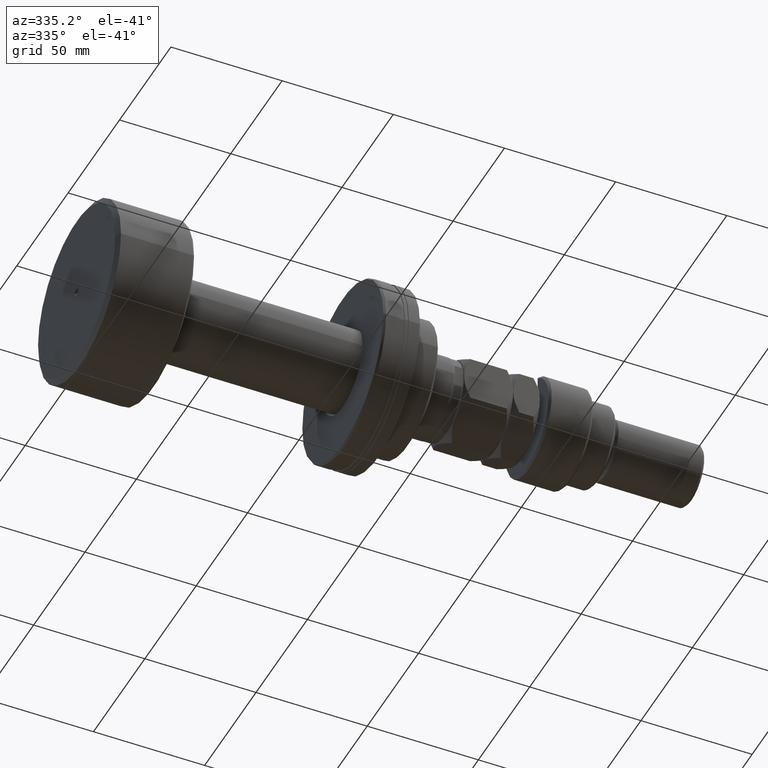
[diagram: clean part render]
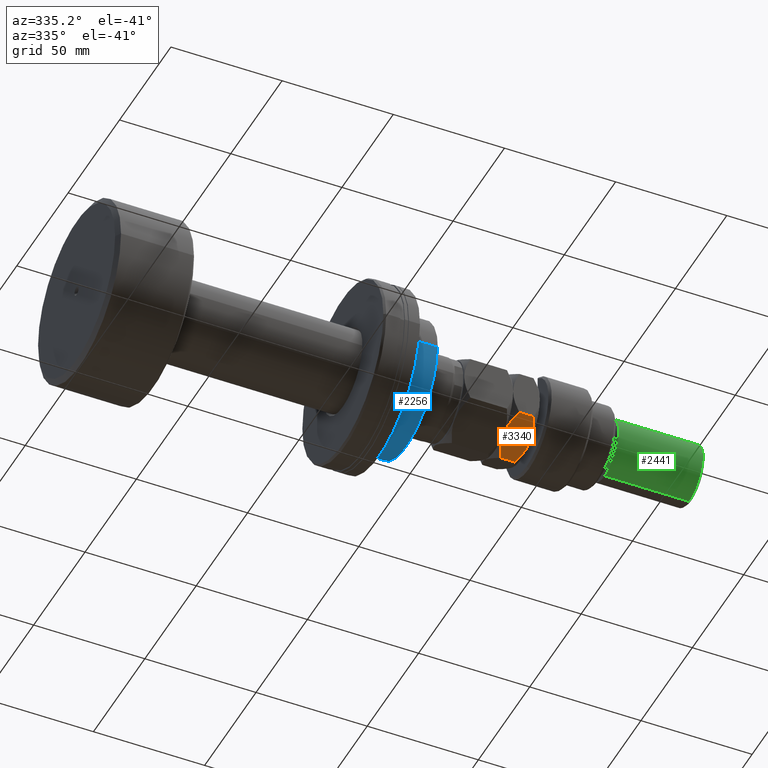
[diagram: same view with three faces highlighted in distinct colors, each labeled with its STEP entity id]
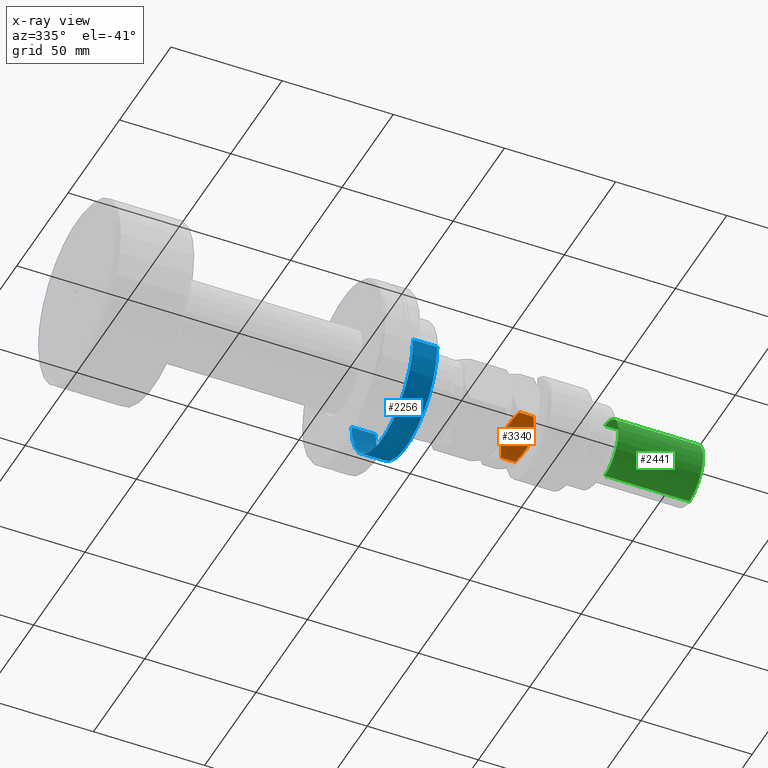
[diagram: x-ray of the same camera — body ghosted, the three highlighted faces saturated]
A machine part, auxiliary view with three faces highlighted in distinct colors.
The next image is the same camera in x-ray (body ghosted, the three faces saturated) — at least one of them is partly hidden behind the body in this view.
Their STEP definitions:

[orange] entity #3340 — the highlighted planar face has unit normal (-0, 0.5, 0.866).
#30 = CARTESIAN_POINT ( 'NONE',  ( 17.99999999999999645, 10.39230484541326227, 34.00000000000000000 ) ) ;
#107 = CARTESIAN_POINT ( 'NONE',  ( 18.00000000000000000, -1.821330908532695414, 22.08626935753087750 ) ) ;
#168 = CARTESIAN_POINT ( 'NONE',  ( 17.99999999999999289, 1.827245545920531233, 22.00000000000000000 ) ) ;
#263 = CARTESIAN_POINT ( 'NONE',  ( 17.99999999999999645, 4.485772026403929580, 33.46805093283005306 ) ) ;
#457 = CARTESIAN_POINT ( 'NONE',  ( 17.99999999999999645, -2.270651277618684460, 22.13729652813022142 ) ) ;
#521 = VERTEX_POINT ( 'NONE', #4537 ) ;
#539 = VECTOR ( 'NONE', #4757, 1000.000000000000000 ) ;
#562 = CARTESIAN_POINT ( 'NONE',  ( 18.00000000000000355, 9.586360653924579367, 24.38163759508217154 ) ) ;
#567 = VERTEX_POINT ( 'NONE', #4213 ) ;
#589 = CARTESIAN_POINT ( 'NONE',  ( 17.99999999999999645, 5.778259303098553623, 22.90012058543822349 ) ) ;
#614 = B_SPLINE_CURVE_WITH_KNOTS ( 'NONE', 3,
 ( #1232, #4526, #3199, #107, #457, #1204, #2900, #819, #920, #2009, #4500, #2827 ),
 .UNSPECIFIED., .F., .F.,
 ( 4, 2, 2, 2, 2, 4 ),
 ( 0.03781684510988157083, 0.03916945699963351318, 0.04052206888938546248, 0.04322729266888934718, 0.04593251644839323189, 0.04863774022789712353 ),
 .UNSPECIFIED. ) ;
#628 = CARTESIAN_POINT ( 'NONE',  ( 17.99999999999999645, -6.210685278230689832, 32.96294020522648083 ) ) ;
#660 = DIRECTION ( 'NONE',  ( -1.000000000000000000, 0.000000000000000000, 0.000000000000000000 ) ) ;
#667 = DIRECTION ( 'NONE',  ( -0.000000000000000000, -0.000000000000000000, -1.000000000000000000 ) ) ;
#704 = ORIENTED_EDGE ( 'NONE', *, *, #5031, .F. ) ;
#819 = CARTESIAN_POINT ( 'NONE',  ( 17.99999999999999289, -6.217733449719363925, 23.02554059171701439 ) ) ;
#833 = CARTESIAN_POINT ( 'NONE',  ( 17.99999999999999645, 3.608119317998972342, 33.66311919894744165 ) ) ;
#897 = ORIENTED_EDGE ( 'NONE', *, *, #1297, .F. ) ;
#920 = CARTESIAN_POINT ( 'NONE',  ( 17.99999999999999289, -7.072062784455384055, 23.32397246801482282 ) ) ;
#956 = CARTESIAN_POINT ( 'NONE',  ( 17.99999999999999645, 10.39230484541326227, 31.21539030917348612 ) ) ;
#1013 = EDGE_CURVE ( 'NONE', #4749, #567, #4907, .T. ) ;
#1035 = FACE_OUTER_BOUND ( 'NONE', #1776, .T. ) ;
#1062 = CARTESIAN_POINT ( 'NONE',  ( 17.99999999999999645, -8.764564343909466260, 31.99445466684792905 ) ) ;
#1132 = VECTOR ( 'NONE', #667, 1000.000000000000000 ) ;
#1204 = CARTESIAN_POINT ( 'NONE',  ( 18.00000000000000000, -3.608119317998971898, 22.33688080105256901 ) ) ;
#1220 = CARTESIAN_POINT ( 'NONE',  ( 17.99999999999999645, 0.9151601729140473873, 33.98241383711814478 ) ) ;
#1232 = CARTESIAN_POINT ( 'NONE',  ( 17.99999999999999645, 0.000000000000000000, 22.00000000000000000 ) ) ;
#1297 = EDGE_CURVE ( 'NONE', #4221, #4749, #2825, .T. ) ;
#1686 = CARTESIAN_POINT ( 'NONE',  ( 17.99999999999999645, -10.39230484541326227, 31.21539030917348612 ) ) ;
#1776 = EDGE_LOOP ( 'NONE', ( #3311, #897, #3547, #704, #2461, #2882 ) ) ;
#1827 = VERTEX_POINT ( 'NONE', #2121 ) ;
#1853 = CARTESIAN_POINT ( 'NONE',  ( 17.99999999999999645, 6.217733449719369254, 32.97445940828297495 ) ) ;
#1892 = CARTESIAN_POINT ( 'NONE',  ( 17.99999999999999645, -5.778259303098551847, 33.09987941456177651 ) ) ;
#2009 = CARTESIAN_POINT ( 'NONE',  ( 18.00000000000000355, -8.761885744235328843, 24.00431157806612958 ) ) ;
#2021 = CARTESIAN_POINT ( 'NONE',  ( 17.99999999999999645, 0.000000000000000000, 34.00000000000000000 ) ) ;
#2046 = CARTESIAN_POINT ( 'NONE',  ( 18.00000000000000000, 9.586151772083033151, 31.61846684583860423 ) ) ;
#2095 = CARTESIAN_POINT ( 'NONE',  ( 18.00000000000000000, -9.586360653924579367, 31.61836240491782490 ) ) ;
#2121 = CARTESIAN_POINT ( 'NONE',  ( 17.99999999999999645, -10.39230484541326227, 31.21539030917348612 ) ) ;
#2176 = CARTESIAN_POINT ( 'NONE',  ( 17.99999999999999645, -3.604369495180868466, 33.71853614772700070 ) ) ;
#2232 = CARTESIAN_POINT ( 'NONE',  ( 17.99999999999999645, 0.000000000000000000, 34.00000000000000000 ) ) ;
#2238 = PLANE ( 'NONE',  #3993 ) ;
#2461 = ORIENTED_EDGE ( 'NONE', *, *, #2927, .T. ) ;
#2508 = CARTESIAN_POINT ( 'NONE',  ( 17.99999999999999645, 10.39230484541326227, 24.78460969082651744 ) ) ;
#2586 = CARTESIAN_POINT ( 'NONE',  ( 17.99999999999999645, 7.071263587154867913, 23.33493736021850751 ) ) ;
#2787 = CARTESIAN_POINT ( 'NONE',  ( 17.99999999999999645, 10.39230484541326227, 24.78460969082651744 ) ) ;
#2814 = CARTESIAN_POINT ( 'NONE',  ( 17.99999999999999645, 1.821330908532694748, 33.91373064246911184 ) ) ;
#2825 = LINE ( 'NONE', #30, #539 ) ;
#2827 = CARTESIAN_POINT ( 'NONE',  ( 17.99999999999999645, -10.39230484541326227, 24.78460969082651744 ) ) ;
#2882 = ORIENTED_EDGE ( 'NONE', *, *, #4543, .F. ) ;
#2900 = CARTESIAN_POINT ( 'NONE',  ( 17.99999999999999645, -4.485772026403924251, 22.53194906716993984 ) ) ;
#2914 = CARTESIAN_POINT ( 'NONE',  ( 17.99999999999999645, 7.072062784455392936, 32.67602753198517718 ) ) ;
#2927 = EDGE_CURVE ( 'NONE', #1827, #4294, #3850, .T. ) ;
#3034 = CARTESIAN_POINT ( 'NONE',  ( 17.99999999999999645, -10.39230484541326227, 24.78460969082651744 ) ) ;
#3199 = CARTESIAN_POINT ( 'NONE',  ( 17.99999999999999289, -0.9151601729140479424, 22.01758616288185877 ) ) ;
#3311 = ORIENTED_EDGE ( 'NONE', *, *, #1013, .F. ) ;
#3340 = ADVANCED_FACE ( 'NONE', ( #1035 ), #2238, .F. ) ;
#3384 = CARTESIAN_POINT ( 'NONE',  ( 18.00000000000000000, 6.210685278230689832, 23.03705979477352628 ) ) ;
#3400 = DIRECTION ( 'NONE',  ( 0.000000000000000000, 0.000000000000000000, 1.000000000000000000 ) ) ;
#3436 = CARTESIAN_POINT ( 'NONE',  ( 17.99999999999999645, 10.39230484541326227, 31.21539030917348612 ) ) ;
#3547 = ORIENTED_EDGE ( 'NONE', *, *, #4873, .F. ) ;
#3748 = CARTESIAN_POINT ( 'NONE',  ( 17.99999999999999645, 8.764564343909469812, 24.00554533315207095 ) ) ;
#3813 = CARTESIAN_POINT ( 'NONE',  ( 17.99999999999999289, -7.499647523188055942, 32.50395483805424846 ) ) ;
#3850 = LINE ( 'NONE', #4286, #1132 ) ;
#3858 = B_SPLINE_CURVE_WITH_KNOTS ( 'NONE', 3,
 ( #1686, #2095, #1062, #3813, #5087, #628, #1892, #2176, #3862, #2232 ),
 .UNSPECIFIED., .F., .F.,
 ( 4, 2, 2, 2, 4 ),
 ( 0.02697565077241457707, 0.02968594935678132291, 0.03104109864896469756, 0.03239624794114807221, 0.03781684510988156389 ),
 .UNSPECIFIED. ) ;
#3862 = CARTESIAN_POINT ( 'NONE',  ( 18.00000000000000000, -1.827245545920534120, 34.00000000000001421 ) ) ;
#3993 = AXIS2_PLACEMENT_3D ( 'NONE', #5119, #660, #3400 ) ;
#4102 = CARTESIAN_POINT ( 'NONE',  ( 18.00000000000000000, 3.604369495180869798, 22.28146385227300641 ) ) ;
#4184 = CARTESIAN_POINT ( 'NONE',  ( 17.99999999999999645, 7.499647523188061271, 23.49604516194576576 ) ) ;
#4213 = CARTESIAN_POINT ( 'NONE',  ( 17.99999999999999645, 0.000000000000000000, 22.00000000000000000 ) ) ;
#4221 = VERTEX_POINT ( 'NONE', #3436 ) ;
#4286 = CARTESIAN_POINT ( 'NONE',  ( 17.99999999999999645, -10.39230484541326227, 34.00000000000000000 ) ) ;
#4294 = VERTEX_POINT ( 'NONE', #3034 ) ;
#4383 = CARTESIAN_POINT ( 'NONE',  ( 18.00000000000000355, 0.4559560457959385138, 34.00000000000001421 ) ) ;
#4439 = CARTESIAN_POINT ( 'NONE',  ( 17.99999999999999289, 2.270651277618684016, 33.86270347186977858 ) ) ;
#4500 = CARTESIAN_POINT ( 'NONE',  ( 18.00000000000000000, -9.586151772083033151, 24.38153315416141353 ) ) ;
#4526 = CARTESIAN_POINT ( 'NONE',  ( 17.99999999999999645, -0.4559560457959390689, 21.99999999999999645 ) ) ;
#4537 = CARTESIAN_POINT ( 'NONE',  ( 17.99999999999999645, 0.000000000000000000, 34.00000000000000000 ) ) ;
#4540 = CARTESIAN_POINT ( 'NONE',  ( 18.00000000000000355, 8.761885744235337725, 31.99568842193386331 ) ) ;
#4543 = EDGE_CURVE ( 'NONE', #567, #4294, #614, .T. ) ;
#4749 = VERTEX_POINT ( 'NONE', #2787 ) ;
#4757 = DIRECTION ( 'NONE',  ( -0.000000000000000000, -0.000000000000000000, -1.000000000000000000 ) ) ;
#4873 = EDGE_CURVE ( 'NONE', #521, #4221, #5186, .T. ) ;
#4907 = B_SPLINE_CURVE_WITH_KNOTS ( 'NONE', 3,
 ( #2508, #562, #3748, #4184, #2586, #3384, #589, #4102, #168, #5026 ),
 .UNSPECIFIED., .F., .F.,
 ( 4, 2, 2, 2, 4 ),
 ( 0.02697565077241458401, 0.02968594935678132984, 0.03104109864896470450, 0.03239624794114807915, 0.03781684510988157083 ),
 .UNSPECIFIED. ) ;
#5026 = CARTESIAN_POINT ( 'NONE',  ( 17.99999999999999645, 0.000000000000000000, 22.00000000000000000 ) ) ;
#5031 = EDGE_CURVE ( 'NONE', #1827, #521, #3858, .T. ) ;
#5087 = CARTESIAN_POINT ( 'NONE',  ( 17.99999999999999645, -7.071263587154868802, 32.66506263978149605 ) ) ;
#5119 = CARTESIAN_POINT ( 'NONE',  ( 17.99999999999999645, -10.39230484541326227, 34.00000000000000000 ) ) ;
#5186 = B_SPLINE_CURVE_WITH_KNOTS ( 'NONE', 3,
 ( #2021, #4383, #1220, #2814, #4439, #833, #263, #1853, #2914, #4540, #2046, #956 ),
 .UNSPECIFIED., .F., .F.,
 ( 4, 2, 2, 2, 2, 4 ),
 ( 0.03781684510988156389, 0.03916945699963351318, 0.04052206888938545554, 0.04322729266888934718, 0.04593251644839323189, 0.04863774022789712353 ),
 .UNSPECIFIED. ) ;

[blue] entity #2256 — the highlighted cylindrical surface (partial cylindrical patch) has radius 30 mm, axis along (1, 0, 0).
#178 = CARTESIAN_POINT ( 'NONE',  ( -30.28002276692733474, 30.00000000000000711, 0.000000000000000000 ) ) ;
#305 = CARTESIAN_POINT ( 'NONE',  ( -22.50000000000068567, -30.00000000000000000, 3.673940397442059967E-15 ) ) ;
#500 = DIRECTION ( 'NONE',  ( 1.000000000000000000, 3.738146982434194072E-16, -0.000000000000000000 ) ) ;
#755 = ORIENTED_EDGE ( 'NONE', *, *, #3662, .T. ) ;
#931 = DIRECTION ( 'NONE',  ( -3.469446951953613203E-16, 1.000000000000000000, 0.000000000000000000 ) ) ;
#1286 = CIRCLE ( 'NONE', #1708, 30.00000000000000711 ) ;
#1415 = CYLINDRICAL_SURFACE ( 'NONE', #1795, 30.00000000000000711 ) ;
#1503 = ORIENTED_EDGE ( 'NONE', *, *, #1767, .T. ) ;
#1584 = LINE ( 'NONE', #4415, #3143 ) ;
#1668 = CARTESIAN_POINT ( 'NONE',  ( -11.60000000000069598, -30.00000000000000000, 3.673940397442059967E-15 ) ) ;
#1708 = AXIS2_PLACEMENT_3D ( 'NONE', #3703, #3217, #931 ) ;
#1715 = EDGE_CURVE ( 'NONE', #3674, #3974, #1286, .T. ) ;
#1767 = EDGE_CURVE ( 'NONE', #5134, #3419, #4826, .T. ) ;
#1781 = CARTESIAN_POINT ( 'NONE',  ( -30.28002276692732408, 0.000000000000000000, 0.000000000000000000 ) ) ;
#1791 = AXIS2_PLACEMENT_3D ( 'NONE', #1949, #3558, #2364 ) ;
#1795 = AXIS2_PLACEMENT_3D ( 'NONE', #1781, #3724, #2955 ) ;
#1949 = CARTESIAN_POINT ( 'NONE',  ( -22.50000000000069633, 2.908286862945609721E-15, 0.000000000000000000 ) ) ;
#2206 = VECTOR ( 'NONE', #500, 1000.000000000000000 ) ;
#2256 = ADVANCED_FACE ( 'NONE', ( #2535 ), #1415, .T. ) ;
#2364 = DIRECTION ( 'NONE',  ( -3.469446951953613696E-16, 1.000000000000000000, 0.000000000000000000 ) ) ;
#2535 = FACE_OUTER_BOUND ( 'NONE', #4045, .T. ) ;
#2658 = CARTESIAN_POINT ( 'NONE',  ( -22.50000000000070699, 30.00000000000000711, 0.000000000000000000 ) ) ;
#2955 = DIRECTION ( 'NONE',  ( -3.469446951953613203E-16, 1.000000000000000000, 0.000000000000000000 ) ) ;
#3089 = EDGE_CURVE ( 'NONE', #5134, #3674, #1584, .T. ) ;
#3143 = VECTOR ( 'NONE', #3588, 1000.000000000000000 ) ;
#3217 = DIRECTION ( 'NONE',  ( 1.000000000000000000, 3.738146982434194072E-16, -0.000000000000000000 ) ) ;
#3228 = ORIENTED_EDGE ( 'NONE', *, *, #1715, .F. ) ;
#3419 = VERTEX_POINT ( 'NONE', #2658 ) ;
#3558 = DIRECTION ( 'NONE',  ( 1.000000000000000000, 3.738146982434194072E-16, -0.000000000000000000 ) ) ;
#3568 = ORIENTED_EDGE ( 'NONE', *, *, #3089, .F. ) ;
#3588 = DIRECTION ( 'NONE',  ( 1.000000000000000000, 3.738146982434194072E-16, -0.000000000000000000 ) ) ;
#3662 = EDGE_CURVE ( 'NONE', #3419, #3974, #4085, .T. ) ;
#3674 = VERTEX_POINT ( 'NONE', #1668 ) ;
#3703 = CARTESIAN_POINT ( 'NONE',  ( -11.60000000000070663, 6.982867073798878356E-15, 0.000000000000000000 ) ) ;
#3724 = DIRECTION ( 'NONE',  ( 1.000000000000000000, 3.738146982434194072E-16, -0.000000000000000000 ) ) ;
#3974 = VERTEX_POINT ( 'NONE', #4472 ) ;
#4045 = EDGE_LOOP ( 'NONE', ( #3568, #1503, #755, #3228 ) ) ;
#4085 = LINE ( 'NONE', #178, #2206 ) ;
#4415 = CARTESIAN_POINT ( 'NONE',  ( -30.28002276692731343, -30.00000000000000711, 3.673940397442059967E-15 ) ) ;
#4472 = CARTESIAN_POINT ( 'NONE',  ( -11.60000000000071729, 30.00000000000001421, 0.000000000000000000 ) ) ;
#4826 = CIRCLE ( 'NONE', #1791, 30.00000000000000355 ) ;
#5134 = VERTEX_POINT ( 'NONE', #305 ) ;

[green] entity #2441 — the highlighted cylindrical surface (edge-blend (fillet) strip) has radius 13.5 mm, axis along (-1, -0, 0).
#55 = CIRCLE ( 'NONE', #4997, 13.50000000000000000 ) ;
#153 = DIRECTION ( 'NONE',  ( -0.000000000000000000, -0.000000000000000000, 1.000000000000000000 ) ) ;
#330 = DIRECTION ( 'NONE',  ( -1.000000000000000000, 0.000000000000000000, 0.000000000000000000 ) ) ;
#418 = DIRECTION ( 'NONE',  ( -0.000000000000000000, -0.000000000000000000, -1.000000000000000000 ) ) ;
#543 = DIRECTION ( 'NONE',  ( 1.000000000000000000, 0.000000000000000000, 0.000000000000000000 ) ) ;
#642 = AXIS2_PLACEMENT_3D ( 'NONE', #5129, #1053, #330 ) ;
#816 = EDGE_CURVE ( 'NONE', #2940, #2079, #3963, .T. ) ;
#885 = VERTEX_POINT ( 'NONE', #1597 ) ;
#1053 = DIRECTION ( 'NONE',  ( -0.000000000000000000, -0.000000000000000000, -1.000000000000000000 ) ) ;
#1071 = ORIENTED_EDGE ( 'NONE', *, *, #1179, .F. ) ;
#1073 = CARTESIAN_POINT ( 'NONE',  ( -13.50000000000000000, 0.000000000000000000, 73.00000000000001421 ) ) ;
#1179 = EDGE_CURVE ( 'NONE', #885, #3019, #3879, .T. ) ;
#1597 = CARTESIAN_POINT ( 'NONE',  ( 13.50000000000000000, 1.653273178848926867E-15, 73.00000000000001421 ) ) ;
#1678 = EDGE_LOOP ( 'NONE', ( #1071, #4970, #4781, #3242 ) ) ;
#2079 = VERTEX_POINT ( 'NONE', #3501 ) ;
#2185 = DIRECTION ( 'NONE',  ( 1.000000000000000000, 0.000000000000000000, 0.000000000000000000 ) ) ;
#2222 = CARTESIAN_POINT ( 'NONE',  ( 13.50000000000000000, 1.653273178848926867E-15, 74.00000000000001421 ) ) ;
#2441 = ADVANCED_FACE ( 'NONE', ( #3069 ), #3515, .T. ) ;
#2526 = DIRECTION ( 'NONE',  ( 0.000000000000000000, 0.000000000000000000, -1.000000000000000000 ) ) ;
#2710 = EDGE_CURVE ( 'NONE', #885, #2940, #55, .T. ) ;
#2779 = CARTESIAN_POINT ( 'NONE',  ( -13.50000000000000000, 0.000000000000000000, 74.00000000000001421 ) ) ;
#2940 = VERTEX_POINT ( 'NONE', #1073 ) ;
#3019 = VERTEX_POINT ( 'NONE', #3112 ) ;
#3069 = FACE_OUTER_BOUND ( 'NONE', #1678, .T. ) ;
#3112 = CARTESIAN_POINT ( 'NONE',  ( 13.50000000000000000, 1.653273178848926867E-15, 34.99999999999999289 ) ) ;
#3242 = ORIENTED_EDGE ( 'NONE', *, *, #4904, .T. ) ;
#3501 = CARTESIAN_POINT ( 'NONE',  ( -13.50000000000000000, 0.000000000000000000, 34.99999999999999289 ) ) ;
#3515 = CYLINDRICAL_SURFACE ( 'NONE', #642, 13.50000000000000000 ) ;
#3879 = LINE ( 'NONE', #2222, #5152 ) ;
#3963 = LINE ( 'NONE', #2779, #4482 ) ;
#4256 = CIRCLE ( 'NONE', #4337, 13.50000000000000000 ) ;
#4337 = AXIS2_PLACEMENT_3D ( 'NONE', #4875, #153, #543 ) ;
#4482 = VECTOR ( 'NONE', #418, 1000.000000000000000 ) ;
#4663 = DIRECTION ( 'NONE',  ( -0.000000000000000000, -0.000000000000000000, -1.000000000000000000 ) ) ;
#4781 = ORIENTED_EDGE ( 'NONE', *, *, #816, .T. ) ;
#4875 = CARTESIAN_POINT ( 'NONE',  ( 0.000000000000000000, 0.000000000000000000, 34.99999999999999289 ) ) ;
#4904 = EDGE_CURVE ( 'NONE', #2079, #3019, #4256, .T. ) ;
#4912 = CARTESIAN_POINT ( 'NONE',  ( 0.000000000000000000, 0.000000000000000000, 73.00000000000001421 ) ) ;
#4970 = ORIENTED_EDGE ( 'NONE', *, *, #2710, .T. ) ;
#4997 = AXIS2_PLACEMENT_3D ( 'NONE', #4912, #2526, #2185 ) ;
#5129 = CARTESIAN_POINT ( 'NONE',  ( 0.000000000000000000, 0.000000000000000000, 74.00000000000001421 ) ) ;
#5152 = VECTOR ( 'NONE', #4663, 1000.000000000000000 ) ;